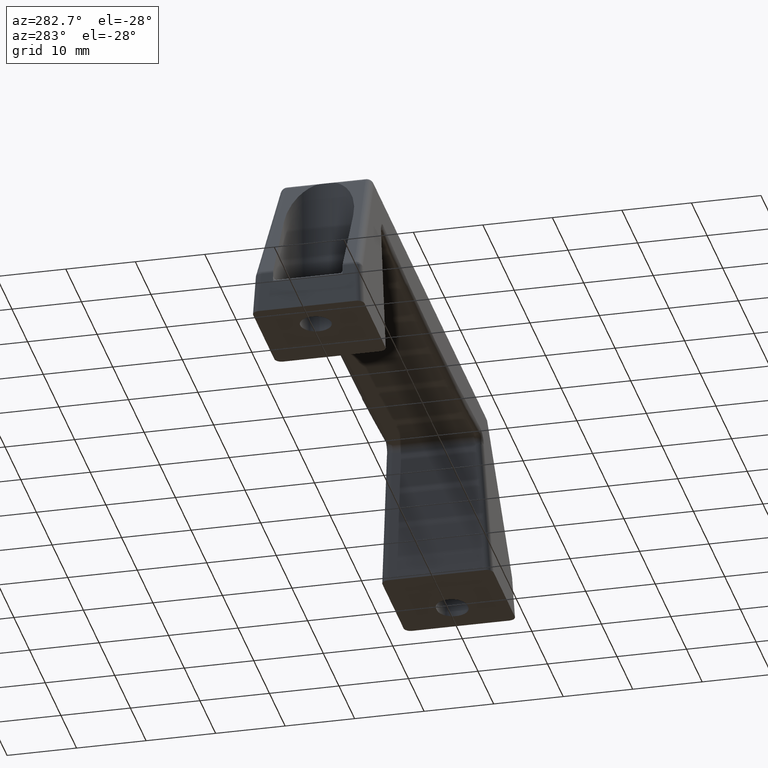
[diagram: clean part render]
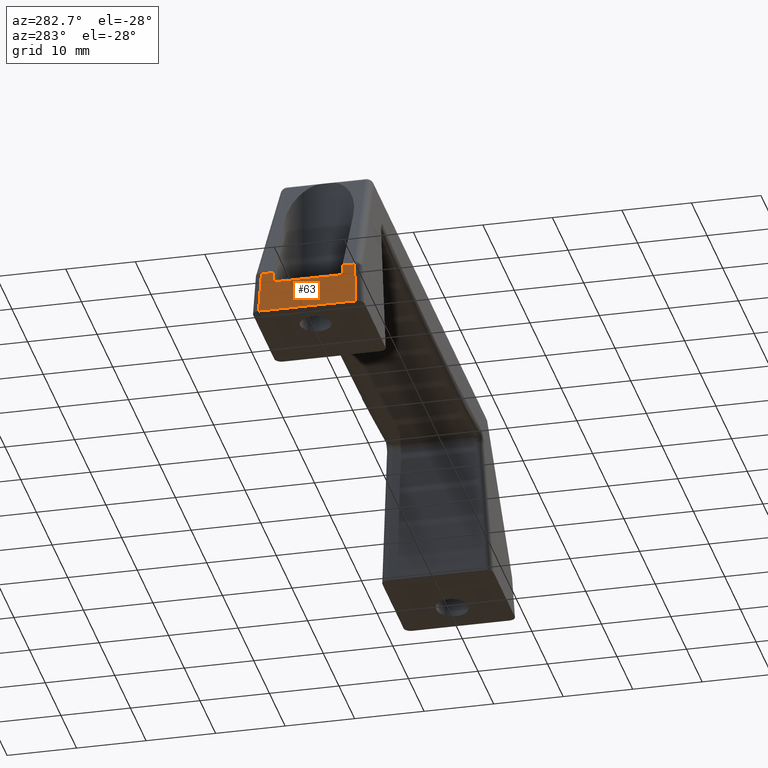
[diagram: same view with one face highlighted and labeled with its STEP entity id]
A machine part, auxiliary view. The second image highlights one B-rep face of the part: STEP entity #63.
In plain terms, the highlighted planar face has unit normal (-0.9977, 0, 0.068).
Its self-contained STEP definition (entity closure, byte-faithful):
#63=ADVANCED_FACE('',(#353),#352,.T.);
#352=PLANE('',#1204);
#353=FACE_OUTER_BOUND('',#1205,.T.);
#1201=CARTESIAN_POINT('',(-4.90415701506E+01,-8.40263158484E+00,-2.66096349909E+01));
#1202=DIRECTION('',(-9.97683234125E-01,0.00000000000E+00,6.80306132980E-02));
#1203=DIRECTION('',(6.80306132980E-02,0.00000000000E+00,9.97683234125E-01));
#1204=AXIS2_PLACEMENT_3D('',#1201,#1202,#1203);
#1205=EDGE_LOOP('',(#1791,#1792,#1793,#1794,#1795,#1796,#1797,#1798,#1799,#1800));
#1791=ORIENTED_EDGE('',*,*,#2132,.T.);
#1792=ORIENTED_EDGE('',*,*,#2148,.T.);
#1793=ORIENTED_EDGE('',*,*,#2149,.T.);
#1794=ORIENTED_EDGE('',*,*,#2150,.T.);
#1795=ORIENTED_EDGE('',*,*,#2151,.T.);
#1796=ORIENTED_EDGE('',*,*,#2152,.T.);
#1797=ORIENTED_EDGE('',*,*,#2153,.F.);
#1798=ORIENTED_EDGE('',*,*,#2154,.F.);
#1799=ORIENTED_EDGE('',*,*,#2155,.F.);
#1800=ORIENTED_EDGE('',*,*,#2156,.F.);
#2132=EDGE_CURVE('',#2785,#2778,#2786,.T.);
#2148=EDGE_CURVE('',#2778,#2895,#2896,.T.);
#2149=EDGE_CURVE('',#2895,#2902,#2903,.T.);
#2150=EDGE_CURVE('',#2902,#2909,#2910,.T.);
#2151=EDGE_CURVE('',#2909,#2916,#2917,.T.);
#2152=EDGE_CURVE('',#2916,#2923,#2924,.T.);
#2153=EDGE_CURVE('',#2311,#2923,#2930,.T.);
#2154=EDGE_CURVE('',#2936,#2311,#2937,.T.);
#2155=EDGE_CURVE('',#2943,#2936,#2944,.T.);
#2156=EDGE_CURVE('',#2785,#2943,#2950,.T.);
#2311=VERTEX_POINT('',#3546);
#2778=VERTEX_POINT('',#3841);
#2785=VERTEX_POINT('',#3845);
#2786=LINE('',#3846,#3847);
#2895=VERTEX_POINT('',#3915);
#2896=LINE('',#3916,#3917);
#2902=VERTEX_POINT('',#3919);
#2903=LINE('',#3920,#3921);
#2909=VERTEX_POINT('',#3923);
#2910=LINE('',#3924,#3925);
#2916=VERTEX_POINT('',#3927);
#2917=LINE('',#3928,#3929);
#2923=VERTEX_POINT('',#3931);
#2924=LINE('',#3932,#3933);
#2930=LINE('',#3935,#3936);
#2936=VERTEX_POINT('',#3938);
#2937=LINE('',#3939,#3940);
#2943=VERTEX_POINT('',#3942);
#2944=LINE('',#3943,#3944);
#2950=LINE('',#3946,#3947);
#3546=CARTESIAN_POINT('',(-4.86319156485E+01,5.00000000004E+00,-2.06019656677E+01));
#3841=CARTESIAN_POINT('',(-4.90000000000E+01,-7.00219298737E+00,-2.60000000000E+01));
#3845=CARTESIAN_POINT('',(-4.90000000000E+01,7.00219298737E+00,-2.60000000000E+01));
#3846=CARTESIAN_POINT('',(-4.90000000000E+01,7.00219298737E+00,-2.60000000000E+01));
#3847=VECTOR('',#3848,1.40043859747E+01);
#3848=DIRECTION('',(0.00000000000E+00,-1.00000000000E+00,0.00000000000E+00));
#3915=CARTESIAN_POINT('',(-4.85842984938E+01,-6.68269682695E+00,-1.99036500918E+01));
#3916=CARTESIAN_POINT('',(-4.90000000000E+01,-7.00219298737E+00,-2.60000000000E+01));
#3917=VECTOR('',#3918,6.11885346631E+00);
#3918=DIRECTION('',(6.79378103247E-02,5.22150370459E-02,9.96322259028E-01));
#3919=CARTESIAN_POINT('',(-4.85842984938E+01,-5.00000000004E+00,-1.99036500918E+01));
#3920=CARTESIAN_POINT('',(-4.85842984938E+01,-6.68269682695E+00,-1.99036500918E+01));
#3921=VECTOR('',#3922,1.68269682690E+00);
#3922=DIRECTION('',(0.00000000000E+00,1.00000000000E+00,0.00000000000E+00));
#3923=CARTESIAN_POINT('',(-4.86319156485E+01,-5.00000000004E+00,-2.06019656677E+01));
#3924=CARTESIAN_POINT('',(-4.85842984938E+01,-5.00000000004E+00,-1.99036500918E+01));
#3925=VECTOR('',#3926,6.99937166399E-01);
#3926=DIRECTION('',(-6.80306132980E-02,0.00000000000E+00,-9.97683234125E-01));
#3927=CARTESIAN_POINT('',(-4.86908318878E+01,-5.00000000004E+00,-2.14659846934E+01));
#3928=CARTESIAN_POINT('',(-4.86319156485E+01,-5.00000000004E+00,-2.06019656677E+01));
#3929=VECTOR('',#3930,8.66025403784E-01);
#3930=DIRECTION('',(-6.80306132980E-02,0.00000000000E+00,-9.97683234125E-01));
#3931=CARTESIAN_POINT('',(-4.86908318878E+01,5.00000000004E+00,-2.14659846934E+01));
#3932=CARTESIAN_POINT('',(-4.86908318878E+01,-5.00000000004E+00,-2.14659846934E+01));
#3933=VECTOR('',#3934,1.00000000001E+01);
#3934=DIRECTION('',(0.00000000000E+00,1.00000000000E+00,0.00000000000E+00));
#3935=CARTESIAN_POINT('',(-4.86319156485E+01,5.00000000004E+00,-2.06019656677E+01));
#3936=VECTOR('',#3937,8.66025403784E-01);
#3937=DIRECTION('',(-6.80306132980E-02,0.00000000000E+00,-9.97683234125E-01));
#3938=CARTESIAN_POINT('',(-4.85842984938E+01,5.00000000004E+00,-1.99036500918E+01));
#3939=CARTESIAN_POINT('',(-4.85842984938E+01,5.00000000004E+00,-1.99036500918E+01));
#3940=VECTOR('',#3941,6.99937166399E-01);
#3941=DIRECTION('',(-6.80306132980E-02,0.00000000000E+00,-9.97683234125E-01));
#3942=CARTESIAN_POINT('',(-4.85842984938E+01,6.68269682695E+00,-1.99036500918E+01));
#3943=CARTESIAN_POINT('',(-4.85842984938E+01,6.68269682695E+00,-1.99036500918E+01));
#3944=VECTOR('',#3945,1.68269682690E+00);
#3945=DIRECTION('',(0.00000000000E+00,-1.00000000000E+00,0.00000000000E+00));
#3946=CARTESIAN_POINT('',(-4.90000000000E+01,7.00219298737E+00,-2.60000000000E+01));
#3947=VECTOR('',#3948,6.11885346631E+00);
#3948=DIRECTION('',(6.79378103247E-02,-5.22150370459E-02,9.96322259028E-01));